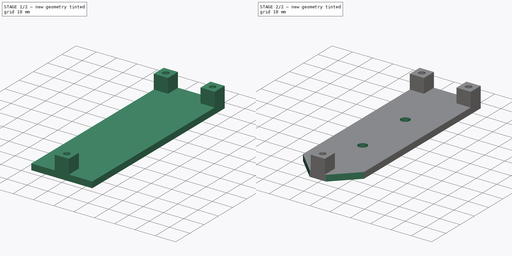
[diagram: build sequence overview — one tinted view per stage of 2, left to right]
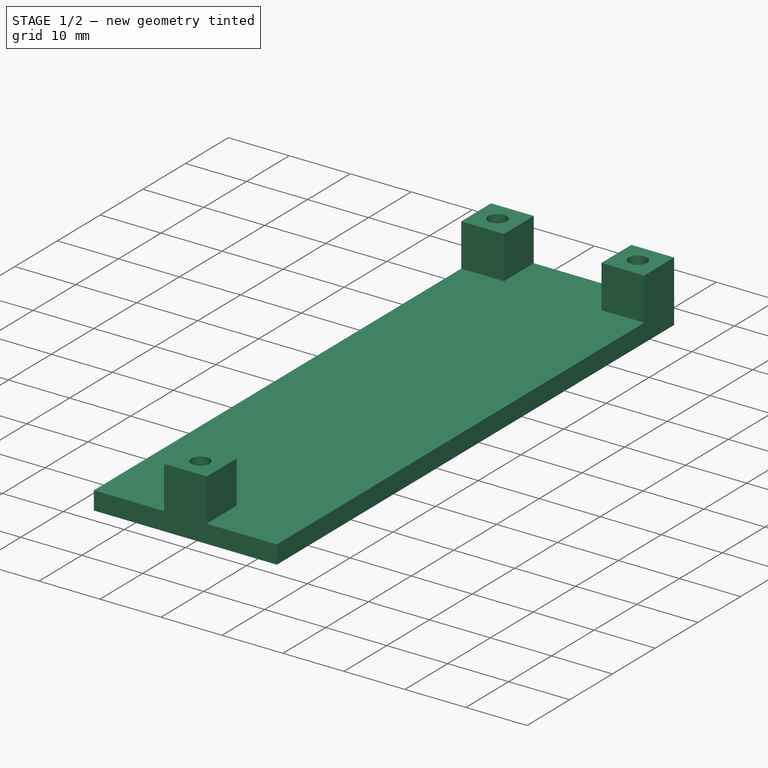
[diagram: stage 1 of 2 — iso view after this stage's code; geometry added in this stage tinted green]
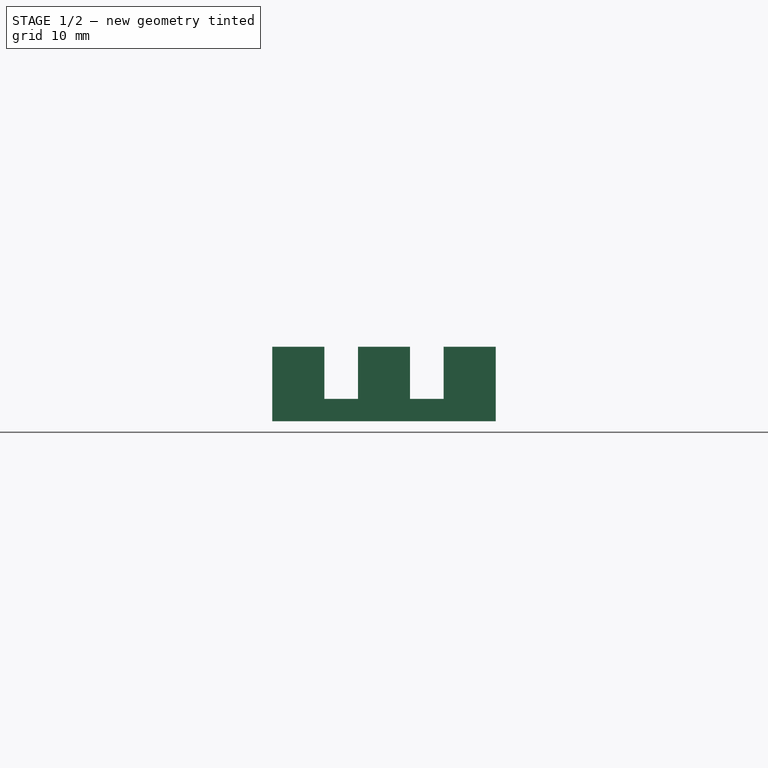
[diagram: stage 1 of 2 — front view after this stage's code; geometry added in this stage tinted green]
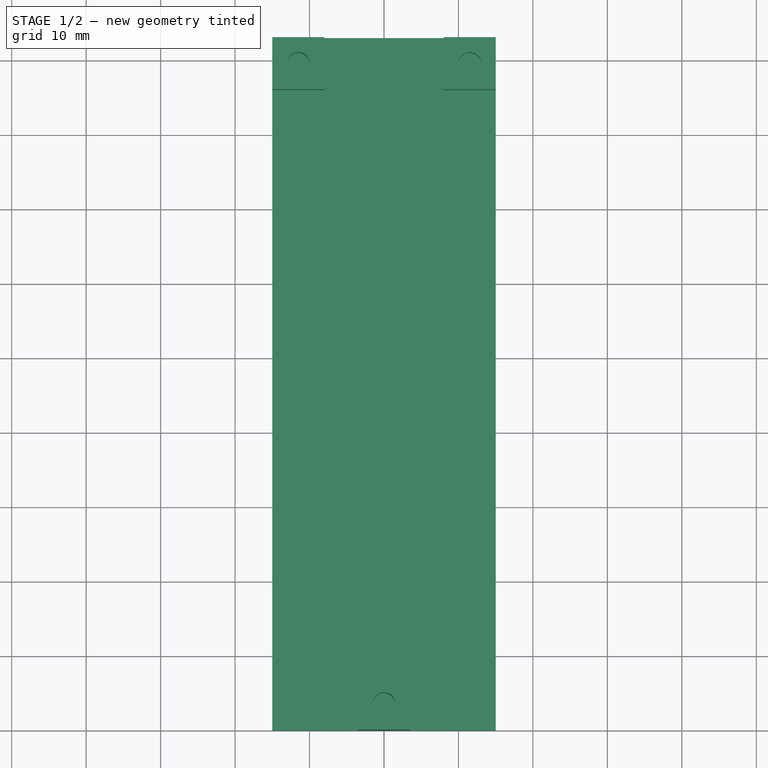
[diagram: stage 1 of 2 — top view after this stage's code; geometry added in this stage tinted green]
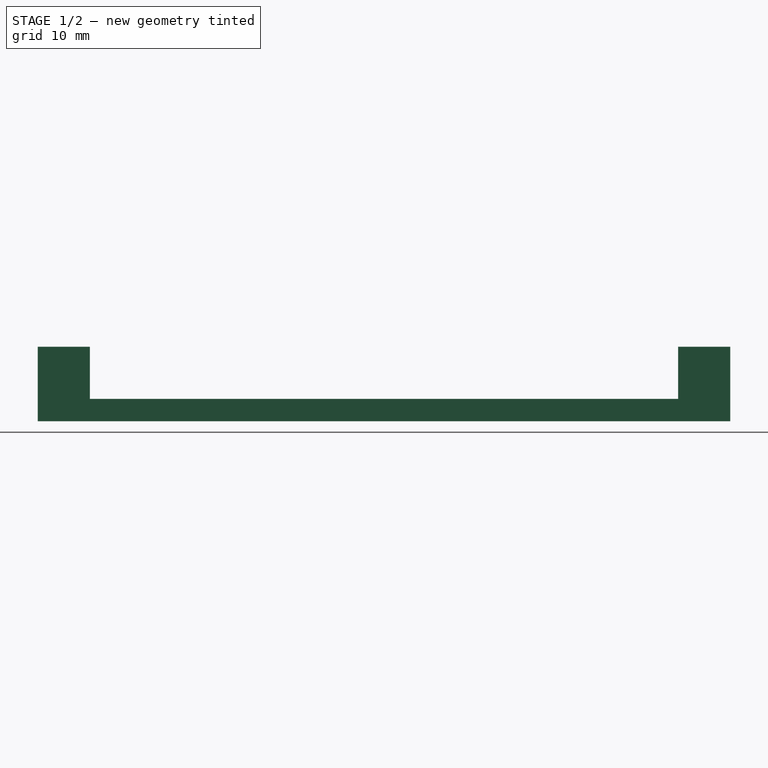
[diagram: stage 1 of 2 — right view after this stage's code; geometry added in this stage tinted green]
FCSTD DOCUMENT  (FreeCAD 0.18R14555 (Git shallow))
Label: Tranceiver Mount
License: All rights reserved
LicenseURL: http://en.wikipedia.org/wiki/All_rights_reserved
objects: Sketcher::SketchObject×3, PartDesign::Pad×2, PartDesign::Hole×1, PartDesign::Chamfer×1, PartDesign::Body×1
note: 11 computed .brp shape members not serialized (recipe doc carries the construction recipe); baked Part::Feature solids carry a one-line shape summary decoded from their .brp

FEATURE [Sketcher::SketchObject] Sketch
  MapMode = 5
  Support = -> [XY_Plane]
  sketch-geometry (4):
    g0: LineSegment StartX=-15 StartY=93 StartZ=0 EndX=15 EndY=93 EndZ=0
    g1: LineSegment StartX=15 StartY=93 StartZ=0 EndX=15 EndY=0 EndZ=0
    g2: LineSegment StartX=15 StartY=0 StartZ=0 EndX=-15 EndY=0 EndZ=0
    g3: LineSegment StartX=-15 StartY=0 StartZ=0 EndX=-15 EndY=93 EndZ=0
  constraints (11):
    c: Coincident(g0,g1)
    c: Coincident(g1,g2)
    c: Coincident(g2,g3)
    c: Coincident(g3,g0)
    c: Horizontal(g0)
    c: Horizontal(g2)
    c: Vertical(g1)
    c: Vertical(g3)
    c: Symmetric(g2,g1,g-1)
    c: DistanceY(g1,g1) = 93
    c: DistanceX(g0,g0) = 30
FEATURE [PartDesign::Pad] Pad
  Length = 3
  Length2 = 100
  Profile = -> Sketch
  Type = 0
FEATURE [Sketcher::SketchObject] Sketch001
  ExternalGeometry = -> [Pad]
  MapMode = 5
  Placement = pos=(0,0,3) rot=(0,0,1;0rad)
  Support = -> [Pad]
  sketch-geometry (21):
    g0: LineSegment StartX=-3.5 StartY=7 StartZ=0 EndX=3.5 EndY=7 EndZ=0
    g1: LineSegment StartX=3.5 StartY=7 StartZ=0 EndX=3.5 EndY=-9e-16 EndZ=0
    g2: LineSegment StartX=3.5 StartY=-9e-16 StartZ=0 EndX=-3.5 EndY=-9e-16 EndZ=0
    g3: LineSegment StartX=-3.5 StartY=-9e-16 StartZ=0 EndX=-3.5 EndY=7 EndZ=0
    g4: LineSegment StartX=-15 StartY=93 StartZ=0 EndX=-8 EndY=93 EndZ=0
    g5: LineSegment StartX=-8 StartY=93 StartZ=0 EndX=-8 EndY=86 EndZ=0
    g6: LineSegment StartX=-8 StartY=86 StartZ=0 EndX=-15 EndY=86 EndZ=0
    g7: LineSegment StartX=-15 StartY=86 StartZ=0 EndX=-15 EndY=93 EndZ=0
    g8: LineSegment StartX=8 StartY=93 StartZ=0 EndX=15 EndY=93 EndZ=0
    g9: LineSegment StartX=15 StartY=93 StartZ=0 EndX=15 EndY=86 EndZ=0
    g10: LineSegment StartX=15 StartY=86 StartZ=0 EndX=8 EndY=86 EndZ=0
    g11: LineSegment StartX=8 StartY=86 StartZ=0 EndX=8 EndY=93 EndZ=0
    g12: Circle CenterX=-2e-16 CenterY=3.5 CenterZ=0 NormalX=0 NormalY=0 NormalZ=1 AngleXU=0 Radius=1.5
    g13: Circle CenterX=-11.5 CenterY=89.5 CenterZ=0 NormalX=0 NormalY=0 NormalZ=1 AngleXU=0 Radius=1.5
    g14: Circle CenterX=11.5 CenterY=89.5 CenterZ=0 NormalX=0 NormalY=0 NormalZ=1 AngleXU=0 Radius=1.5
    g15: LineSegment [constr] StartX=-3.5 StartY=7 StartZ=0 EndX=3.5 EndY=-9e-16 EndZ=0
    g16: LineSegment [constr] StartX=3.5 StartY=7 StartZ=0 EndX=-3.5 EndY=-9e-16 EndZ=0
    g17: LineSegment [constr] StartX=-15 StartY=93 StartZ=0 EndX=-8 EndY=86 EndZ=0
    g18: LineSegment [constr] StartX=-8 StartY=93 StartZ=0 EndX=-15 EndY=86 EndZ=0
    g19: LineSegment [constr] StartX=8 StartY=93 StartZ=0 EndX=15 EndY=86 EndZ=0
    g20: LineSegment [constr] StartX=15 StartY=93 StartZ=0 EndX=8 EndY=86 EndZ=0
  constraints (54):
    c: Coincident(g0,g1)
    c: Coincident(g1,g2)
    c: Coincident(g2,g3)
    c: Coincident(g3,g0)
    c: Horizontal(g0)
    c: Horizontal(g2)
    c: Vertical(g1)
    c: Vertical(g3)
    c: Coincident(g4,g5)
    c: Coincident(g5,g6)
    c: Coincident(g6,g7)
    c: Coincident(g7,g4)
    c: Horizontal(g4)
    c: Horizontal(g6)
    c: Vertical(g5)
    c: Vertical(g7)
    c: Coincident(g8,g9)
    c: Coincident(g9,g10)
    c: Coincident(g10,g11)
    c: Coincident(g11,g8)
    c: Horizontal(g8)
    c: Horizontal(g10)
    c: Vertical(g9)
    c: Vertical(g11)
    c: Equal(g0,g3)
    c: Equal(g3,g7)
    c: Equal(g7,g4)
    c: Equal(g4,g8)
    c: Equal(g8,g11)
    c: Symmetric(g1,g2,g-1)
    c: Symmetric(g4,g8,g-2)
    c: Coincident(g4,g-3)
    c: DistanceY(g7,g7) = 7
    c: Equal(g12,g13)
    c: Equal(g13,g14)
    c: Radius(g12) = 1.5
    c: Coincident(g16,g2)
    c: Coincident(g16,g0)
    c: Coincident(g15,g0)
    c: Coincident(g15,g1)
    c: PointOnObject(g12,g16)
    c: PointOnObject(g12,g15)
    c: Coincident(g18,g4)
    c: Coincident(g18,g6)
    c: Coincident(g17,g4)
    c: Coincident(g17,g5)
    c: PointOnObject(g13,g18)
    c: PointOnObject(g13,g17)
    c: Coincident(g19,g8)
    c: Coincident(g20,g8)
    c: Coincident(g19,g9)
    c: Coincident(g20,g10)
    c: PointOnObject(g14,g19)
    c: PointOnObject(g14,g20)
FEATURE [PartDesign::Pad] Pad001
  BaseFeature = -> Pad
  Length = 7
  Length2 = 100
  Profile = -> Sketch001
  Type = 0
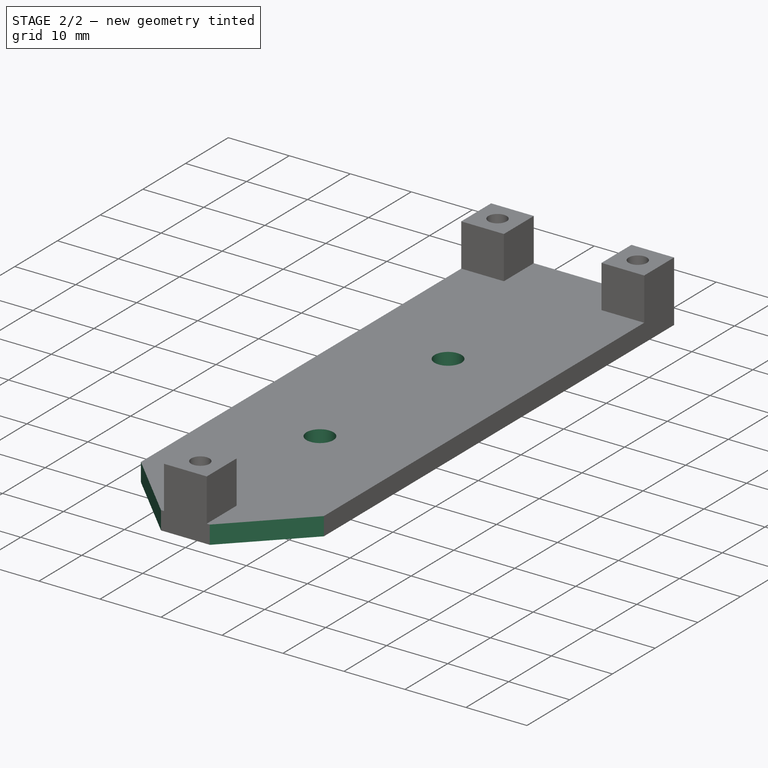
[diagram: stage 2 of 2 — iso view after this stage's code; geometry added in this stage tinted green]
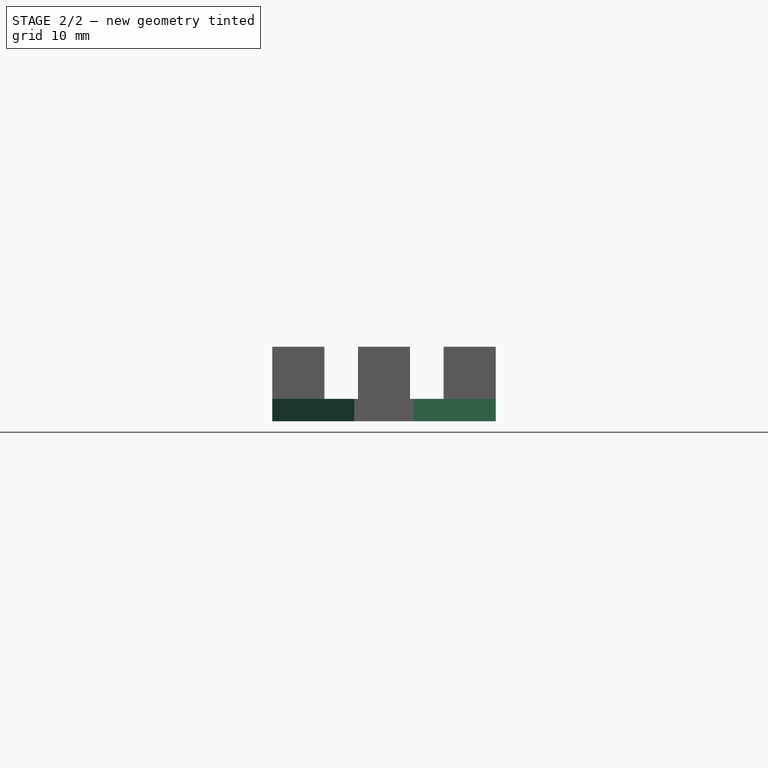
[diagram: stage 2 of 2 — front view after this stage's code; geometry added in this stage tinted green]
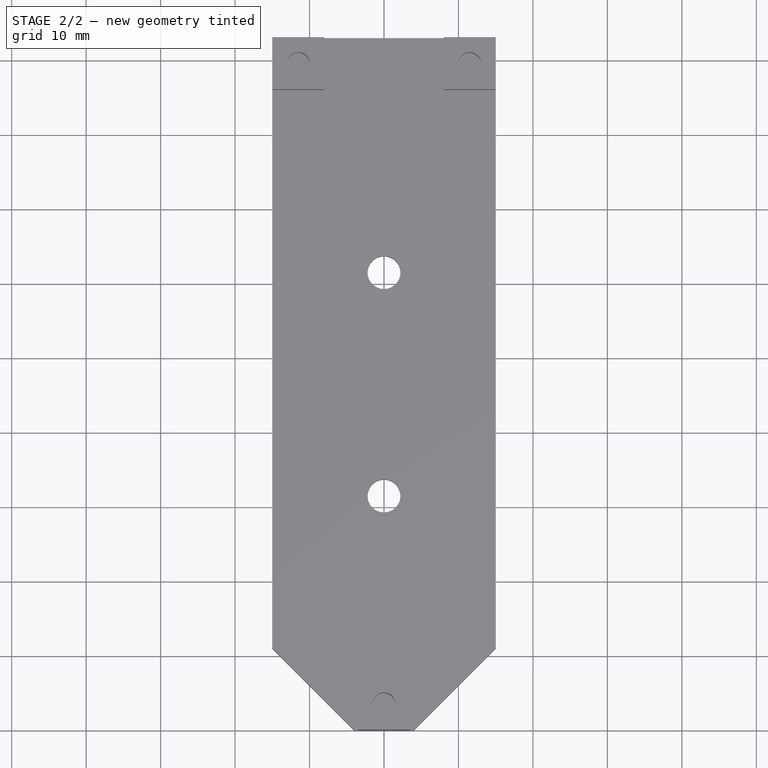
[diagram: stage 2 of 2 — top view after this stage's code; geometry added in this stage tinted green]
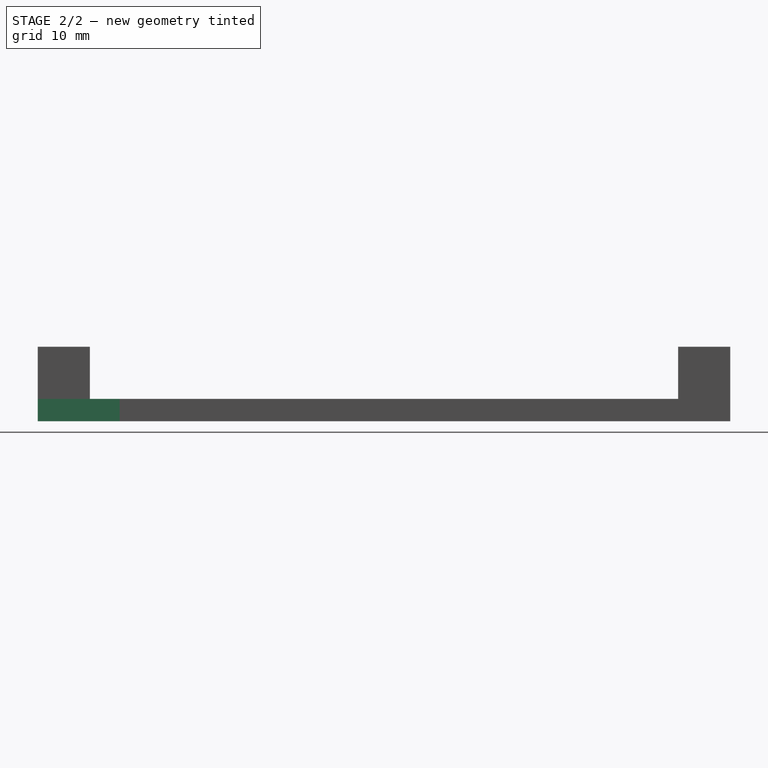
[diagram: stage 2 of 2 — right view after this stage's code; geometry added in this stage tinted green]
FEATURE [Sketcher::SketchObject] Sketch002
  ExternalGeometry = -> [Pad001]
  MapMode = 5
  Placement = pos=(0,0,3) rot=(0,0,1;0rad)
  Support = -> [Pad001]
  sketch-geometry (4):
    g0: Circle CenterX=0 CenterY=61.5 CenterZ=0 NormalX=0 NormalY=0 NormalZ=1 AngleXU=0 Radius=1.5
    g1: Circle CenterX=0 CenterY=31.5 CenterZ=0 NormalX=0 NormalY=0 NormalZ=1 AngleXU=0 Radius=1.5
    g2: LineSegment [constr] StartX=-2e-16 StartY=93 StartZ=0 EndX=0 EndY=61.5 EndZ=0
    g3: LineSegment [constr] StartX=0 StartY=31.5 StartZ=0 EndX=0 EndY=0 EndZ=0
  constraints (10):
    c: Equal(g1,g0)
    c: Radius(g0) = 1.5
    c: PointOnObject(g1,g-2)
    c: PointOnObject(g0,g-2)
    c: DistanceY(g1,g0) = 30
    c: Symmetric(g-3,g-3,g2)
    c: Coincident(g2,g0)
    c: Coincident(g3,g-1)
    c: Coincident(g3,g1)
    c: Equal(g3,g2)
FEATURE [PartDesign::Hole] Hole
  BaseFeature = -> Pad001
  Depth = 25
  DepthType = 0
  Diameter = 4.4
  DrillPoint = 1
  DrillPointAngle = 118
  HoleCutCountersinkAngle = 90
  HoleCutDepth = 0
  HoleCutDiameter = 4
  HoleCutType = 0
  ModelActualThread = false
  Profile = -> Sketch002
  Tapered = false
  TaperedAngle = 90
  ThreadAngle = 0
  ThreadClass = 0
  ThreadCutOffInner = 0
  ThreadCutOffOuter = 0
  ThreadDirection = 0
  ThreadFit = 0
  ThreadPitch = 0
  ThreadSize = 11
  ThreadType = 2
  Threaded = false
FEATURE [PartDesign::Chamfer] Chamfer
  Base = -> Hole [Edge11,Edge7]
  BaseFeature = -> Hole
  Size = 11
FEATURE [PartDesign::Body] Body
  Group = -> [Sketch,Pad,Sketch001,Pad001,Sketch002,Hole,Chamfer]
  Origin = -> Origin
  Tip = -> Chamfer
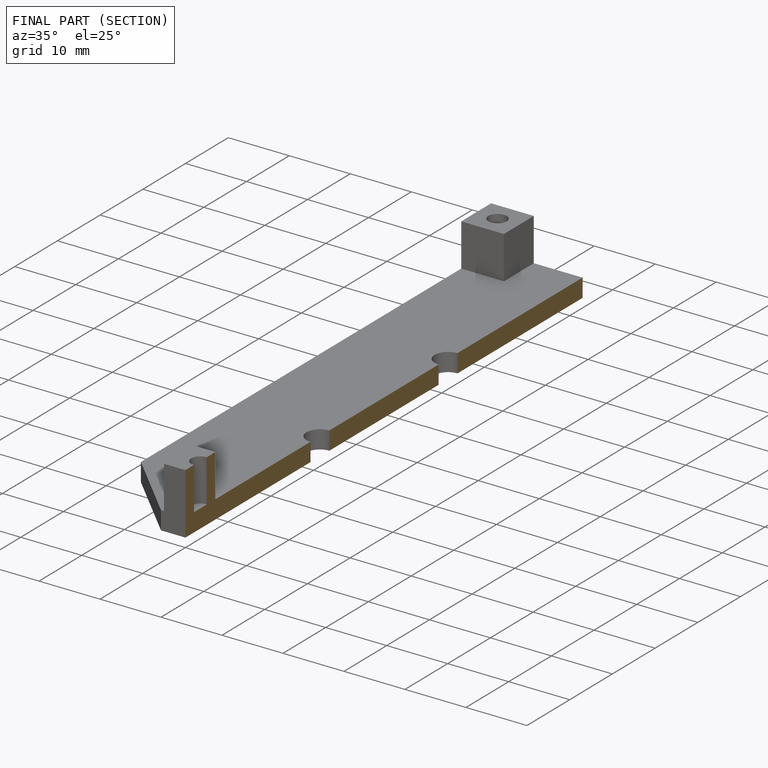
[diagram: finished part — half-section view (interior)]
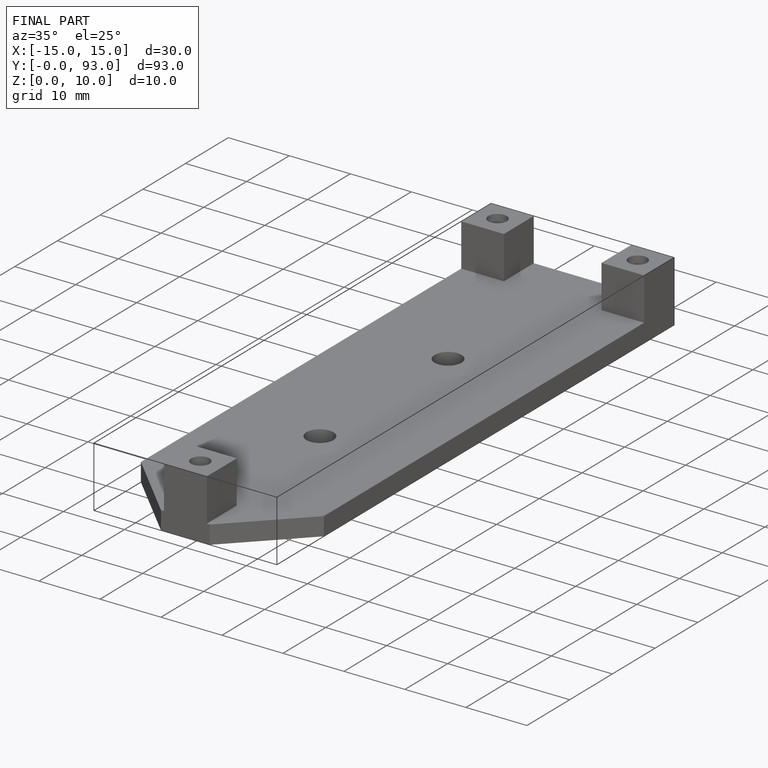
[diagram: finished part — iso view with bounding-box wireframe]
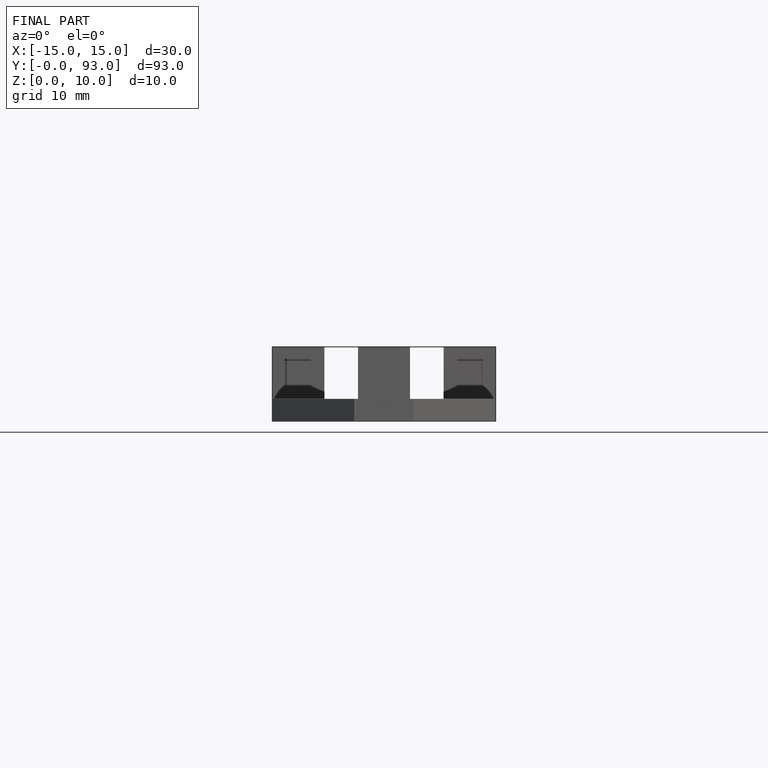
[diagram: finished part — front view with bounding-box wireframe]
